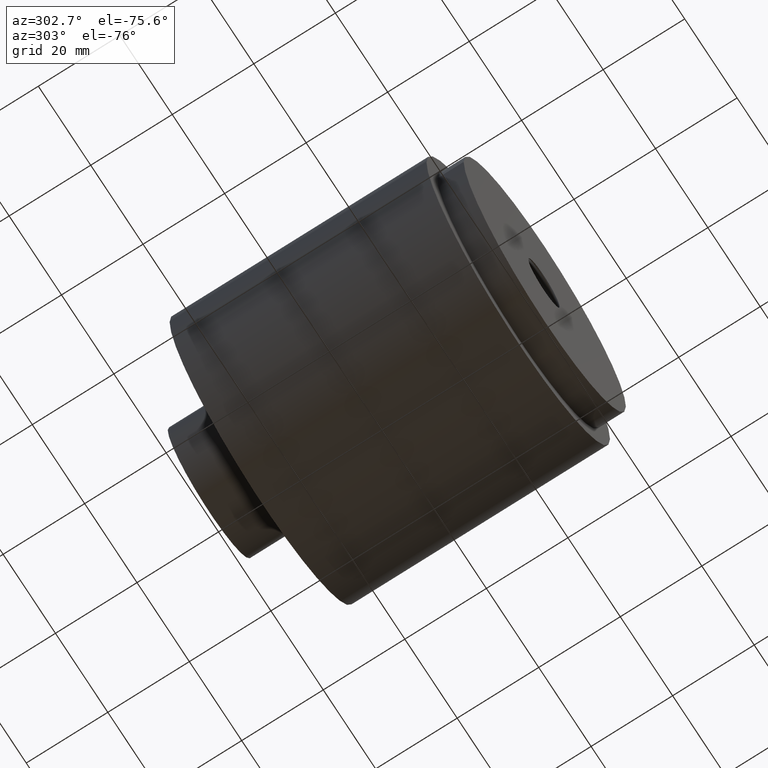
[diagram: clean part render]
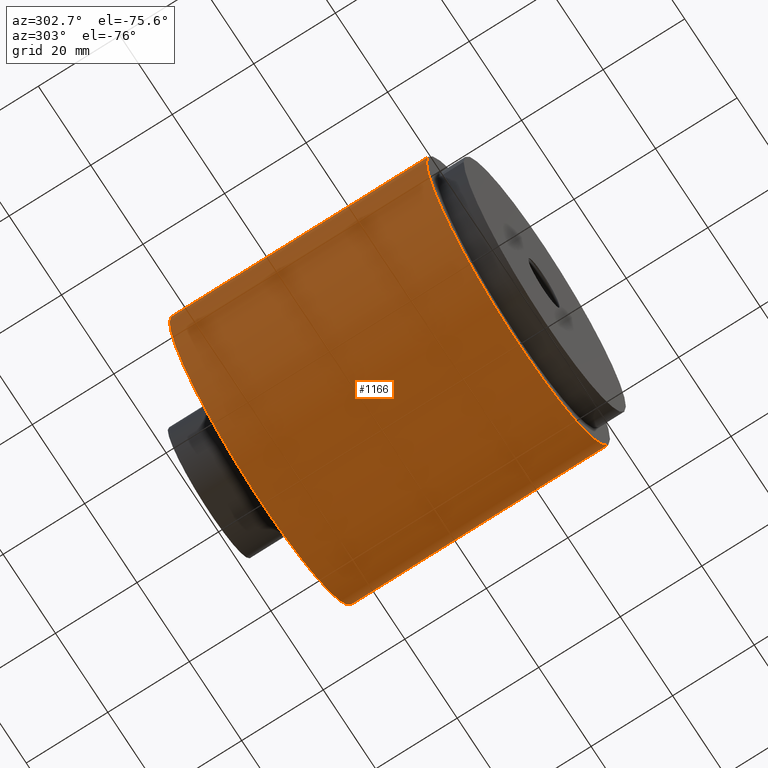
[diagram: same view with one face highlighted and labeled with its STEP entity id]
A machine part, auxiliary view. The second image highlights one B-rep face of the part: STEP entity #1166.
In plain terms, the highlighted cylindrical surface (bore or boss wall) has radius 35.052 mm, axis along (0, 1, 0).
Its self-contained STEP definition (entity closure, byte-faithful):
#80=B_SPLINE_CURVE_WITH_KNOTS('',3,(#4882,#4883,#4884,#4885,#4886,#4887,
#4888,#4889,#4890,#4891,#4892,#4893,#4894,#4895,#4896,#4897,#4898,#4899,
#4900,#4901,#4902,#4903,#4904,#4905,#4906,#4907,#4908,#4909,#4910,#4911,
#4912,#4913,#4914,#4915),.UNSPECIFIED.,.F.,.F.,(4,2,2,2,2,2,2,2,2,2,2,2,
2,2,2,2,4),(0.,0.398706125984851,0.797412251969702,1.19611837795455,1.5948245039394,
1.99126019905966,2.38769589417993,2.78413158930019,3.18056728442045,3.57700297954071,
3.97343867466097,4.36987436978123,4.76631006490149,5.16501619088635,5.5637223168712,
5.96242844285605,6.3611345688409),.UNSPECIFIED.);
#81=B_SPLINE_CURVE_WITH_KNOTS('',3,(#4916,#4917,#4918,#4919,#4920,#4921,
#4922,#4923,#4924,#4925,#4926,#4927,#4928,#4929,#4930,#4931,#4932,#4933,
#4934,#4935,#4936,#4937,#4938,#4939,#4940,#4941,#4942,#4943,#4944,#4945,
#4946,#4947,#4948,#4949),.UNSPECIFIED.,.F.,.F.,(4,2,2,2,2,2,2,2,2,2,2,2,
2,2,2,2,4),(6.3611345688409,6.75984069482575,7.1585468208106,7.55725294679545,
7.9559590727803,8.35239476790056,8.74883046302082,9.14526615814109,9.54170185326135,
9.93813754838161,10.3345732435019,10.7310089386221,11.1274446337424,11.5261507597272,
11.9248568857121,12.3235630116969,12.7222691376818),.UNSPECIFIED.);
#98=FACE_BOUND('',#272,.T.);
#193=FACE_OUTER_BOUND('',#271,.T.);
#271=EDGE_LOOP('',(#1044,#1045,#1046,#1047));
#272=EDGE_LOOP('',(#1048,#1049));
#351=LINE('',#4966,#426);
#426=VECTOR('',#1541,1.38);
#452=CIRCLE('',#1273,1.38);
#454=CIRCLE('',#1276,1.38);
#558=VERTEX_POINT('',#4879);
#559=VERTEX_POINT('',#4881);
#562=VERTEX_POINT('',#4959);
#564=VERTEX_POINT('',#4964);
#720=EDGE_CURVE('',#559,#558,#80,.T.);
#721=EDGE_CURVE('',#558,#559,#81,.T.);
#725=EDGE_CURVE('',#562,#562,#452,.T.);
#727=EDGE_CURVE('',#564,#564,#454,.T.);
#728=EDGE_CURVE('',#564,#562,#351,.T.);
#1044=ORIENTED_EDGE('',*,*,#727,.F.);
#1045=ORIENTED_EDGE('',*,*,#728,.T.);
#1046=ORIENTED_EDGE('',*,*,#725,.T.);
#1047=ORIENTED_EDGE('',*,*,#728,.F.);
#1048=ORIENTED_EDGE('',*,*,#720,.T.);
#1049=ORIENTED_EDGE('',*,*,#721,.T.);
#1098=CYLINDRICAL_SURFACE('',#1275,1.38);
#1166=ADVANCED_FACE('',(#193,#98),#1098,.T.);
#1273=AXIS2_PLACEMENT_3D('',#4960,#1533,#1534);
#1275=AXIS2_PLACEMENT_3D('',#4963,#1537,#1538);
#1276=AXIS2_PLACEMENT_3D('',#4965,#1539,#1540);
#1533=DIRECTION('center_axis',(0.,1.,0.));
#1534=DIRECTION('ref_axis',(-1.,0.,0.));
#1537=DIRECTION('center_axis',(0.,1.,0.));
#1538=DIRECTION('ref_axis',(-1.,0.,0.));
#1539=DIRECTION('center_axis',(0.,1.,0.));
#1540=DIRECTION('ref_axis',(-1.,0.,0.));
#1541=DIRECTION('',(0.,-1.,0.));
#4879=CARTESIAN_POINT('',(-0.807086614173228,1.68110236220472,1.1193798270571));
#4881=CARTESIAN_POINT('',(0.807086614173228,1.68110236220472,1.1193798270571));
#4882=CARTESIAN_POINT('Ctrl Pts',(0.807086614173228,1.68110236220472,1.1193798270571));
#4883=CARTESIAN_POINT('Ctrl Pts',(0.807086614173228,1.62877872362404,1.1193798270571));
#4884=CARTESIAN_POINT('Ctrl Pts',(0.801921831472492,1.5752860889531,1.12315950398084));
#4885=CARTESIAN_POINT('Ctrl Pts',(0.780818300512763,1.46991881571867,1.13793175348829));
#4886=CARTESIAN_POINT('Ctrl Pts',(0.764890239239038,1.41803732899372,1.14889072512944));
#4887=CARTESIAN_POINT('Ctrl Pts',(0.723396577959372,1.31922134905101,1.17545915166681));
#4888=CARTESIAN_POINT('Ctrl Pts',(0.697797333071113,1.27218513428923,1.19105229052328));
#4889=CARTESIAN_POINT('Ctrl Pts',(0.63906603410746,1.18539173922993,1.22356907472137));
#4890=CARTESIAN_POINT('Ctrl Pts',(0.60592256877755,1.14563209520871,1.24046552636249));
#4891=CARTESIAN_POINT('Ctrl Pts',(0.535670862208902,1.07538038864007,1.27237439827824));
#4892=CARTESIAN_POINT('Ctrl Pts',(0.496014264387966,1.04226923722274,1.28859674326392));
#4893=CARTESIAN_POINT('Ctrl Pts',(0.409191048435685,0.983463058460155,1.31873970254353));
#4894=CARTESIAN_POINT('Ctrl Pts',(0.362020317510719,0.957763750765227,1.3326401161731));
#4895=CARTESIAN_POINT('Ctrl Pts',(0.262910456310492,0.916147743450091,1.35567934548528));
#4896=CARTESIAN_POINT('Ctrl Pts',(0.210871469748818,0.900197456033682,1.36482587682009));
#4897=CARTESIAN_POINT('Ctrl Pts',(0.105430290868628,0.879127485404006,1.37698979828105));
#4898=CARTESIAN_POINT('Ctrl Pts',(0.0520256817743125,0.874015748031496,
1.38));
#4899=CARTESIAN_POINT('Ctrl Pts',(-0.0520256817743124,0.874015748031496,
1.38));
#4900=CARTESIAN_POINT('Ctrl Pts',(-0.105430290868628,0.879127485404006,
1.37698979828105));
#4901=CARTESIAN_POINT('Ctrl Pts',(-0.210871469748818,0.900197456033682,
1.36482587682009));
#4902=CARTESIAN_POINT('Ctrl Pts',(-0.262910456310492,0.916147743450091,
1.35567934548528));
#4903=CARTESIAN_POINT('Ctrl Pts',(-0.362020317510719,0.957763750765227,
1.3326401161731));
#4904=CARTESIAN_POINT('Ctrl Pts',(-0.409191048435684,0.983463058460154,
1.31873970254353));
#4905=CARTESIAN_POINT('Ctrl Pts',(-0.496014264387966,1.04226923722274,1.28859674326392));
#4906=CARTESIAN_POINT('Ctrl Pts',(-0.535670862208902,1.07538038864007,1.27237439827824));
#4907=CARTESIAN_POINT('Ctrl Pts',(-0.60592256877755,1.14563209520871,1.24046552636249));
#4908=CARTESIAN_POINT('Ctrl Pts',(-0.63906603410746,1.18539173922993,1.22356907472137));
#4909=CARTESIAN_POINT('Ctrl Pts',(-0.697797333071113,1.27218513428923,1.19105229052328));
#4910=CARTESIAN_POINT('Ctrl Pts',(-0.723396577959372,1.31922134905101,1.17545915166681));
#4911=CARTESIAN_POINT('Ctrl Pts',(-0.764890239239038,1.41803732899372,1.14889072512944));
#4912=CARTESIAN_POINT('Ctrl Pts',(-0.780818300512763,1.46991881571867,1.13793175348829));
#4913=CARTESIAN_POINT('Ctrl Pts',(-0.801921831472492,1.5752860889531,1.12315950398084));
#4914=CARTESIAN_POINT('Ctrl Pts',(-0.807086614173228,1.62877872362404,1.1193798270571));
#4915=CARTESIAN_POINT('Ctrl Pts',(-0.807086614173228,1.68110236220472,1.1193798270571));
#4916=CARTESIAN_POINT('Ctrl Pts',(-0.807086614173228,1.68110236220472,1.1193798270571));
#4917=CARTESIAN_POINT('Ctrl Pts',(-0.807086614173228,1.73342600078541,1.1193798270571));
#4918=CARTESIAN_POINT('Ctrl Pts',(-0.801921831472492,1.78691863545635,1.12315950398084));
#4919=CARTESIAN_POINT('Ctrl Pts',(-0.780818300512763,1.89228590869078,1.13793175348829));
#4920=CARTESIAN_POINT('Ctrl Pts',(-0.764890239239038,1.94416739541573,1.14889072512944));
#4921=CARTESIAN_POINT('Ctrl Pts',(-0.723396577959372,2.04298337535843,1.17545915166681));
#4922=CARTESIAN_POINT('Ctrl Pts',(-0.697797333071113,2.09001959012022,1.19105229052328));
#4923=CARTESIAN_POINT('Ctrl Pts',(-0.639066034107461,2.17681298517952,1.22356907472137));
#4924=CARTESIAN_POINT('Ctrl Pts',(-0.60592256877755,2.21657262920073,1.24046552636249));
#4925=CARTESIAN_POINT('Ctrl Pts',(-0.535670862208902,2.28682433576938,1.27237439827824));
#4926=CARTESIAN_POINT('Ctrl Pts',(-0.496014264387966,2.31993548718671,1.28859674326392));
#4927=CARTESIAN_POINT('Ctrl Pts',(-0.409191048435684,2.37874166594929,1.31873970254353));
#4928=CARTESIAN_POINT('Ctrl Pts',(-0.362020317510719,2.40444097364422,1.3326401161731));
#4929=CARTESIAN_POINT('Ctrl Pts',(-0.262910456310493,2.44605698095936,1.35567934548528));
#4930=CARTESIAN_POINT('Ctrl Pts',(-0.210871469748819,2.46200726837577,1.36482587682009));
#4931=CARTESIAN_POINT('Ctrl Pts',(-0.105430290868629,2.48307723900544,1.37698979828105));
#4932=CARTESIAN_POINT('Ctrl Pts',(-0.0520256817743127,2.48818897637795,
1.38));
#4933=CARTESIAN_POINT('Ctrl Pts',(0.0520256817743123,2.48818897637795,1.38));
#4934=CARTESIAN_POINT('Ctrl Pts',(0.105430290868628,2.48307723900544,1.37698979828105));
#4935=CARTESIAN_POINT('Ctrl Pts',(0.210871469748818,2.46200726837577,1.36482587682009));
#4936=CARTESIAN_POINT('Ctrl Pts',(0.262910456310492,2.44605698095936,1.35567934548528));
#4937=CARTESIAN_POINT('Ctrl Pts',(0.362020317510719,2.40444097364422,1.3326401161731));
#4938=CARTESIAN_POINT('Ctrl Pts',(0.409191048435684,2.37874166594929,1.31873970254353));
#4939=CARTESIAN_POINT('Ctrl Pts',(0.496014264387966,2.31993548718671,1.28859674326392));
#4940=CARTESIAN_POINT('Ctrl Pts',(0.535670862208902,2.28682433576938,1.27237439827824));
#4941=CARTESIAN_POINT('Ctrl Pts',(0.60592256877755,2.21657262920074,1.24046552636249));
#4942=CARTESIAN_POINT('Ctrl Pts',(0.63906603410746,2.17681298517952,1.22356907472137));
#4943=CARTESIAN_POINT('Ctrl Pts',(0.697797333071113,2.09001959012022,1.19105229052328));
#4944=CARTESIAN_POINT('Ctrl Pts',(0.723396577959372,2.04298337535843,1.17545915166681));
#4945=CARTESIAN_POINT('Ctrl Pts',(0.764890239239038,1.94416739541573,1.14889072512944));
#4946=CARTESIAN_POINT('Ctrl Pts',(0.780818300512763,1.89228590869078,1.13793175348829));
#4947=CARTESIAN_POINT('Ctrl Pts',(0.801921831472491,1.78691863545635,1.12315950398084));
#4948=CARTESIAN_POINT('Ctrl Pts',(0.807086614173228,1.73342600078541,1.1193798270571));
#4949=CARTESIAN_POINT('Ctrl Pts',(0.807086614173228,1.68110236220472,1.1193798270571));
#4959=CARTESIAN_POINT('',(1.38,0.255905511811024,-1.69001258282335E-16));
#4960=CARTESIAN_POINT('Origin',(0.,0.255905511811024,0.));
#4963=CARTESIAN_POINT('Origin',(0.,0.255905511811024,0.));
#4964=CARTESIAN_POINT('',(1.38,2.73622047244094,-1.69001258282335E-16));
#4965=CARTESIAN_POINT('Origin',(0.,2.73622047244094,0.));
#4966=CARTESIAN_POINT('',(1.38,0.255905511811024,-1.69001258282335E-16));